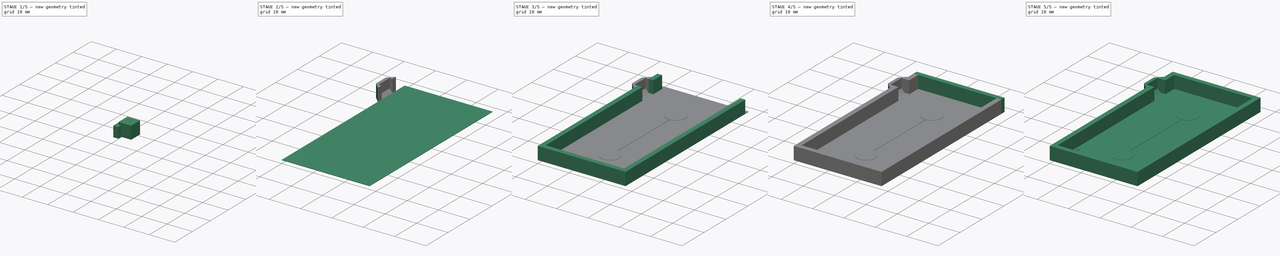
[diagram: build sequence overview — one tinted view per stage of 5, left to right]
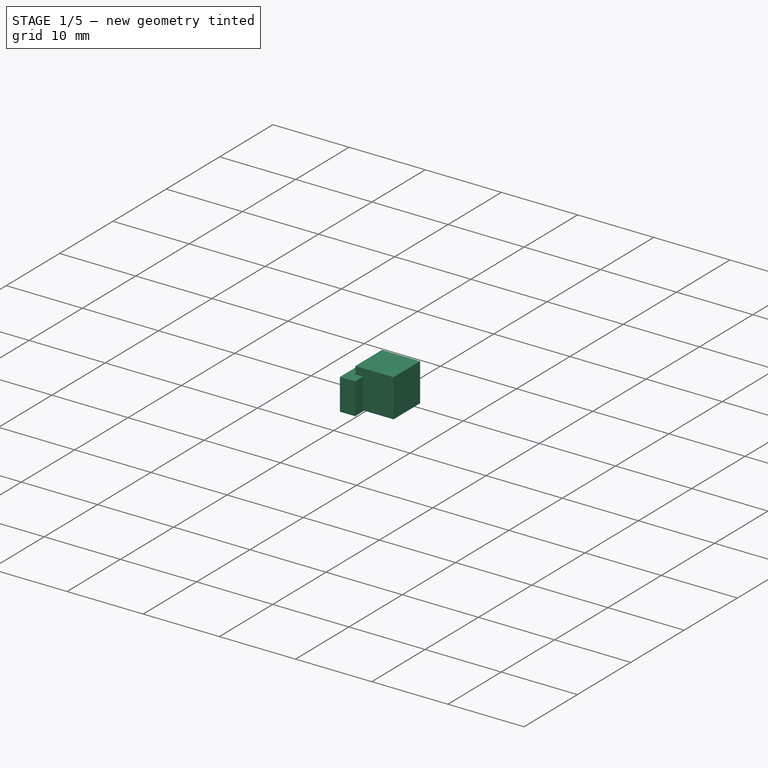
[diagram: stage 1 of 5 — iso view after this stage's code; geometry added in this stage tinted green]
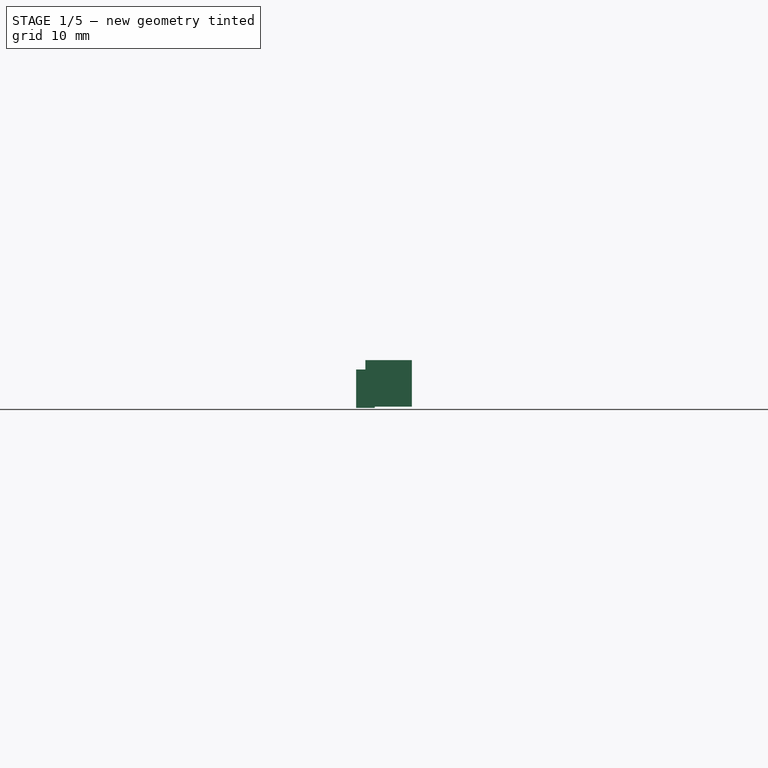
[diagram: stage 1 of 5 — front view after this stage's code; geometry added in this stage tinted green]
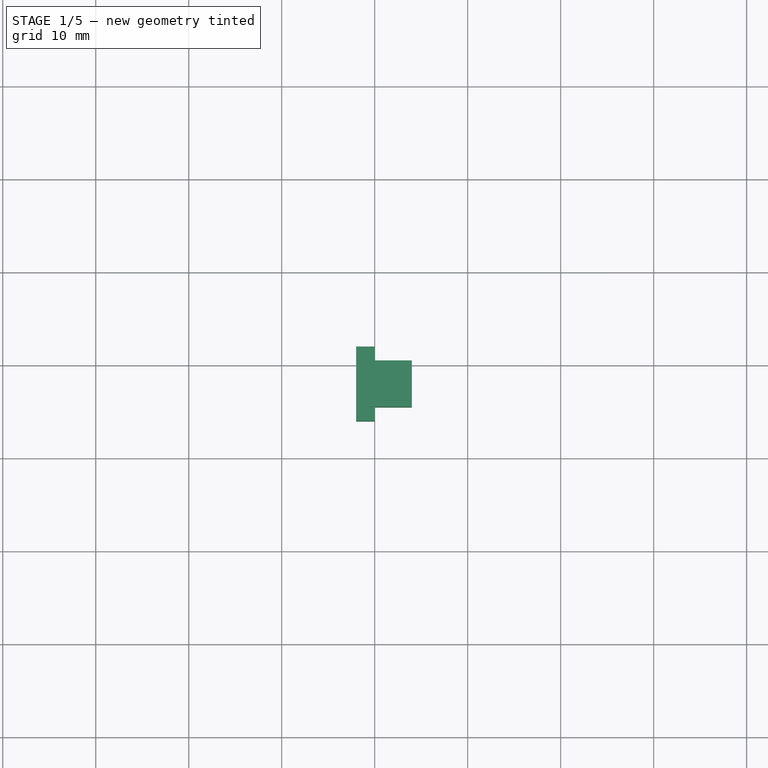
[diagram: stage 1 of 5 — top view after this stage's code; geometry added in this stage tinted green]
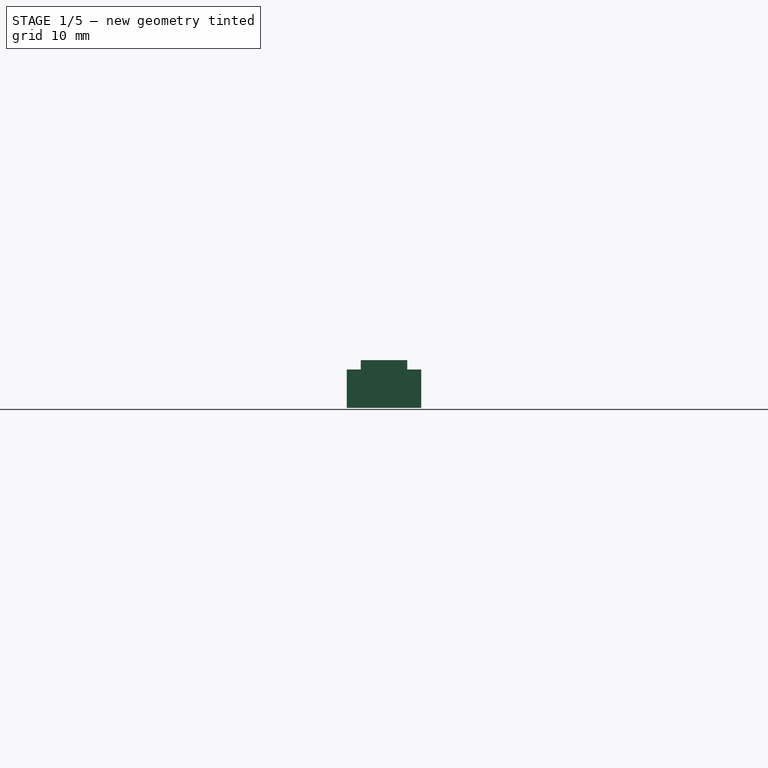
[diagram: stage 1 of 5 — right view after this stage's code; geometry added in this stage tinted green]
FCSTD DOCUMENT  (FreeCAD 0.16R6706 (Git))
Label: Maskless_Large_WithWalls_Template_v1
License: All rights reserved
LicenseURL: http://en.wikipedia.org/wiki/All_rights_reserved
objects: PartDesign::Pad×6, Sketcher::SketchObject×5, Part::MultiFuse×4, Part::Box×3, Part::Chamfer×2, Part::Part2DObjectPython×1, Part::Cut×1
note: 28 computed .brp shape members not serialized (recipe doc carries the construction recipe); baked Part::Feature solids carry a one-line shape summary decoded from their .brp

FEATURE [Part::Box] Box002  label="Cube002"
  Height = 4.125
  Length = 2
  Placement = pos=(-2,44,0) rot=(0,0,1;0rad)
  Width = 8
FEATURE [Part::Box] Box004  label="Cube004"
  Height = 5
  Length = 5
  Placement = pos=(-1,45.5,0.125) rot=(0,0,1;0rad)
  Width = 5
FEATURE [Part::Chamfer] Chamfer
  Base = -> Box004
  Edges = 1 edges r=1: [Edge4]
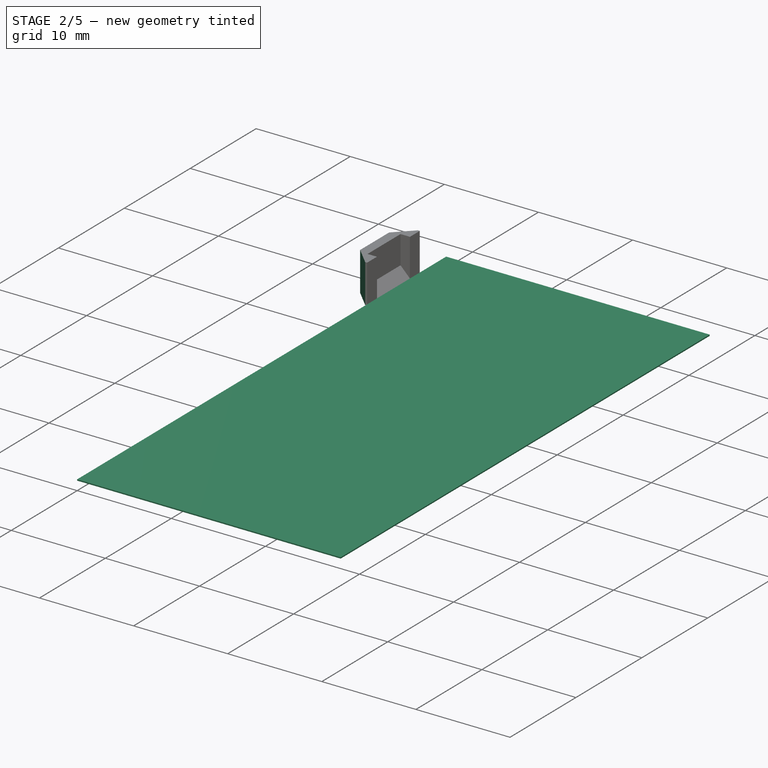
[diagram: stage 2 of 5 — iso view after this stage's code; geometry added in this stage tinted green]
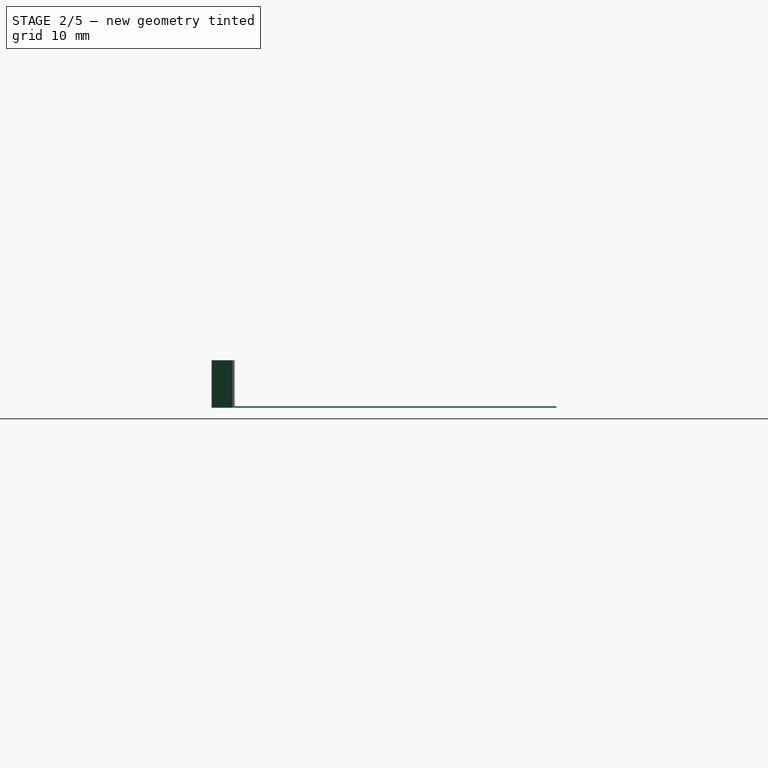
[diagram: stage 2 of 5 — front view after this stage's code; geometry added in this stage tinted green]
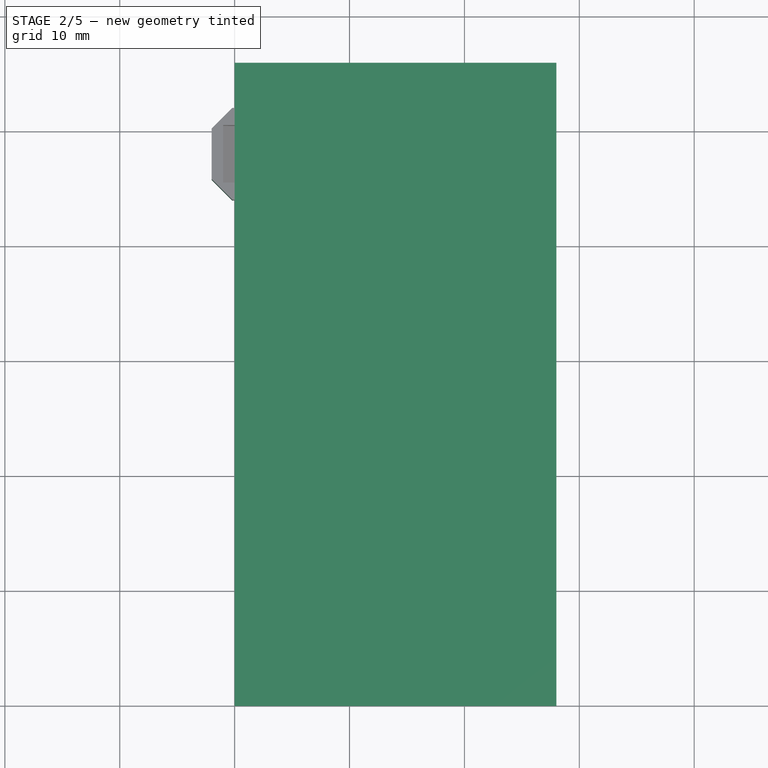
[diagram: stage 2 of 5 — top view after this stage's code; geometry added in this stage tinted green]
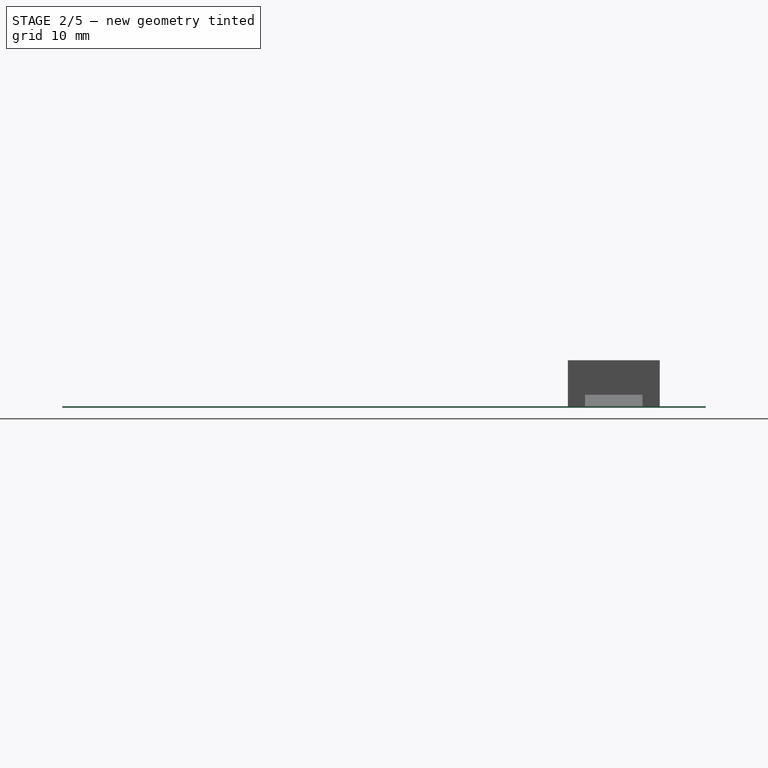
[diagram: stage 2 of 5 — right view after this stage's code; geometry added in this stage tinted green]
FEATURE [Part::Box] Box  label="Base"
  Height = 0.125
  Length = 28
  Width = 56
FEATURE [Part::Chamfer] Chamfer001
  Base = -> Box002
  Edges = 2 edges r=1.8: [Edge1,Edge3]
FEATURE [Part::Cut] Cut  label="Replica Removal Edge"
  Base = -> Chamfer001
  Tool = -> Chamfer
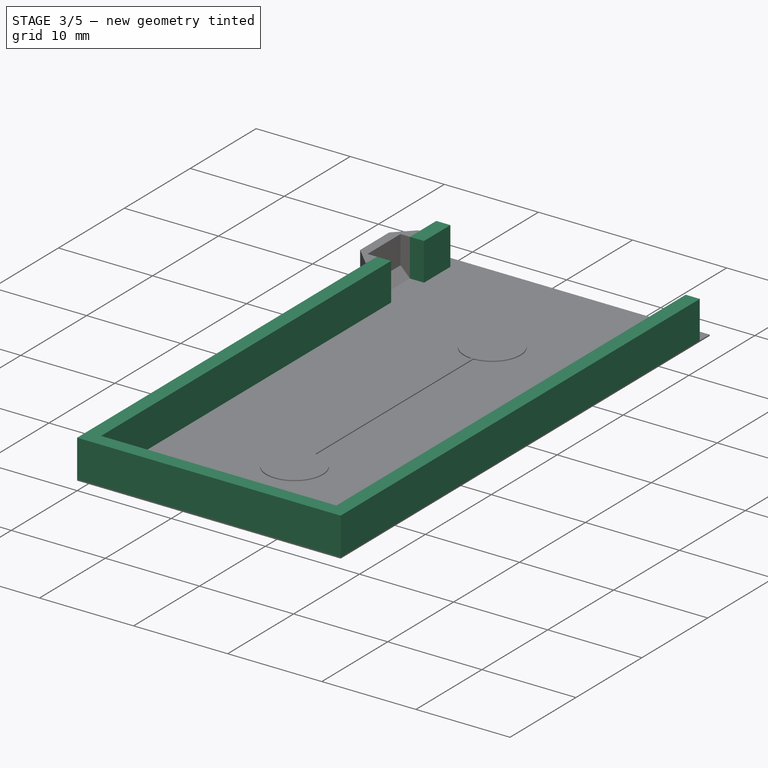
[diagram: stage 3 of 5 — iso view after this stage's code; geometry added in this stage tinted green]
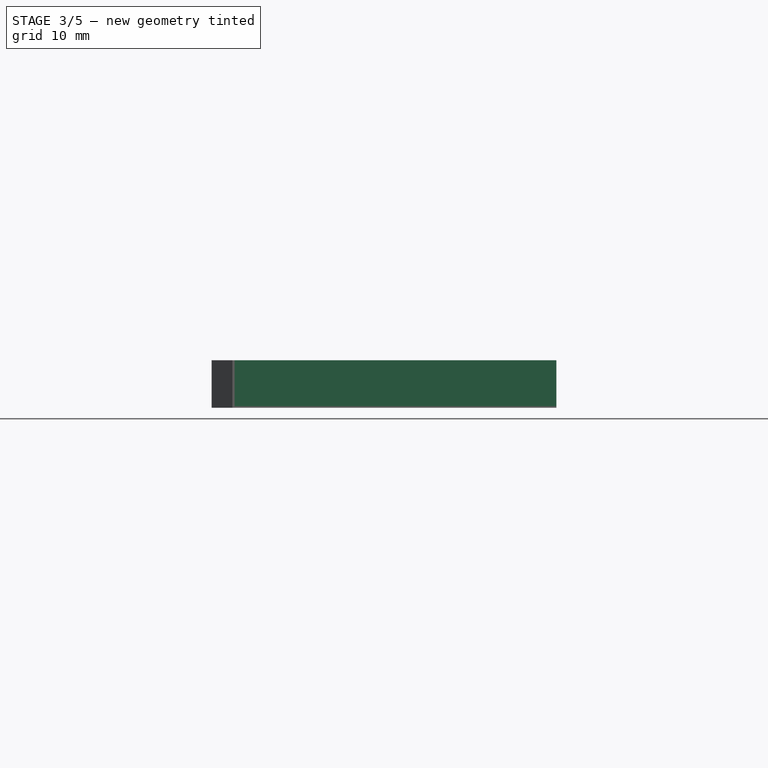
[diagram: stage 3 of 5 — front view after this stage's code; geometry added in this stage tinted green]
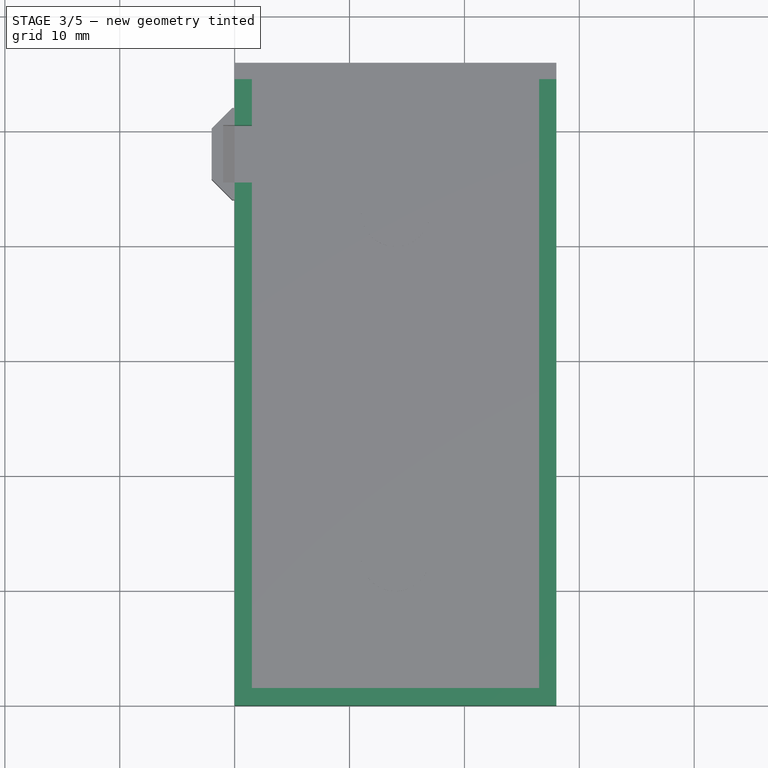
[diagram: stage 3 of 5 — top view after this stage's code; geometry added in this stage tinted green]
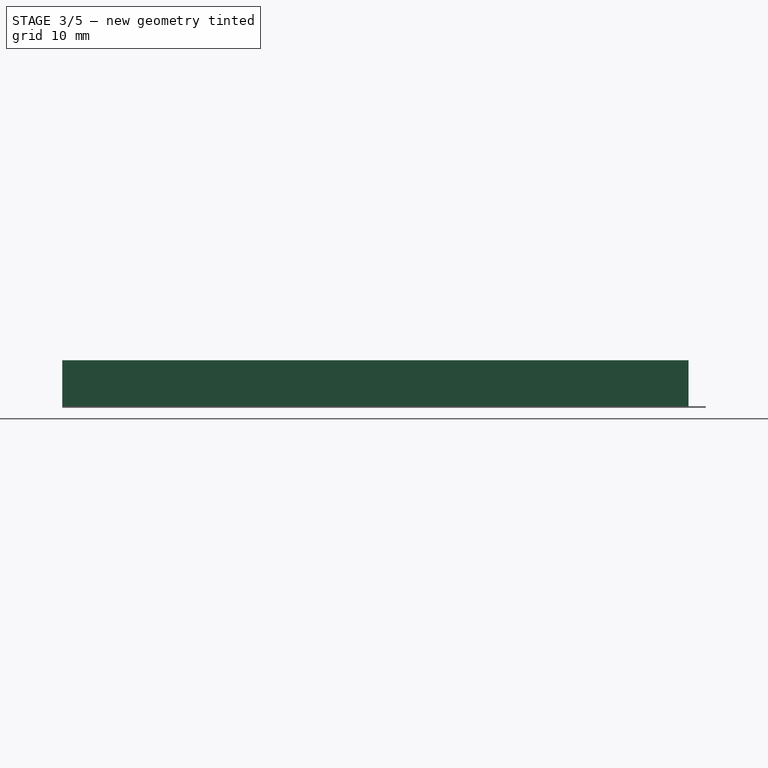
[diagram: stage 3 of 5 — right view after this stage's code; geometry added in this stage tinted green]
FEATURE [Sketcher::SketchObject] Sketch  label="Sketch - customize in Part Design"
  Placement = pos=(0,0,0.125) rot=(0,0,1;0rad)
  Support = -> Box [Face6]
  sketch-geometry (4):
    g0: ArcOfCircle CenterX=14 CenterY=43 CenterZ=0 NormalX=0 NormalY=0 NormalZ=1 Radius=3 StartAngle=4.74573 EndAngle=10.9622
    g1: ArcOfCircle CenterX=14 CenterY=13 CenterZ=0 NormalX=0 NormalY=0 NormalZ=1 Radius=3 StartAngle=1.60414 EndAngle=7.82064
    g2: LineSegment StartX=13.9 StartY=40.0017 StartZ=0 EndX=13.9 EndY=15.9983 EndZ=0
    g3: LineSegment StartX=14.1 StartY=40.0017 StartZ=0 EndX=14.1 EndY=15.9983 EndZ=0
  constraints (14):
    c: Coincident(g2,g0)
    c: Coincident(g2,g1)
    c: Vertical(g2)
    c: Coincident(g3,g0)
    c: Coincident(g3,g1)
    c: Vertical(g3)
    c: Radius(g1) = 3
    c: Equal(g1,g0)
    c: DistanceY(g1,g1) = 0
    c: DistanceX(g1,g1) = 0.2
    c: DistanceY(g0,g0) = 0
    c: DistanceY(g1,g0) = 30
    c: DistanceX(g1) = 14
    c: DistanceY(g1) = 13
FEATURE [PartDesign::Pad] Pad  label="Padded design - adjust "length""
  Length = 0.1
  Length2 = 100
  Sketch = -> Sketch
  Type = 0
FEATURE [PartDesign::Pad] Pad004
  Length = 4
  Length2 = 100
  Sketch = -> Sketch004
  Type = 0
FEATURE [PartDesign::Pad] Pad005
  Length = 4
  Length2 = 100
  Sketch = -> Sketch005
  Type = 0
FEATURE [PartDesign::Pad] Pad006
  Length = 4
  Length2 = 100
  Sketch = -> Sketch006
  Type = 0
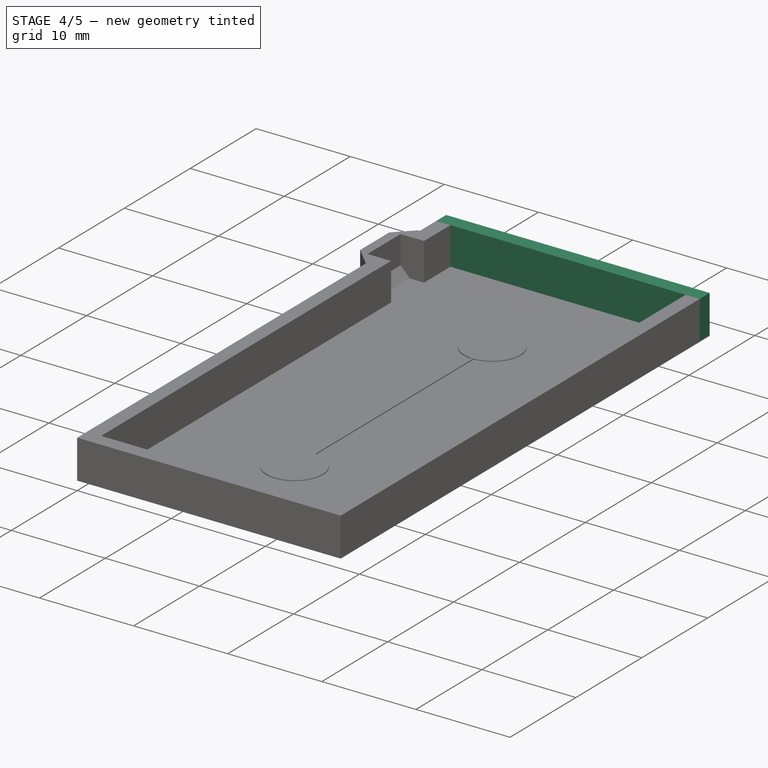
[diagram: stage 4 of 5 — iso view after this stage's code; geometry added in this stage tinted green]
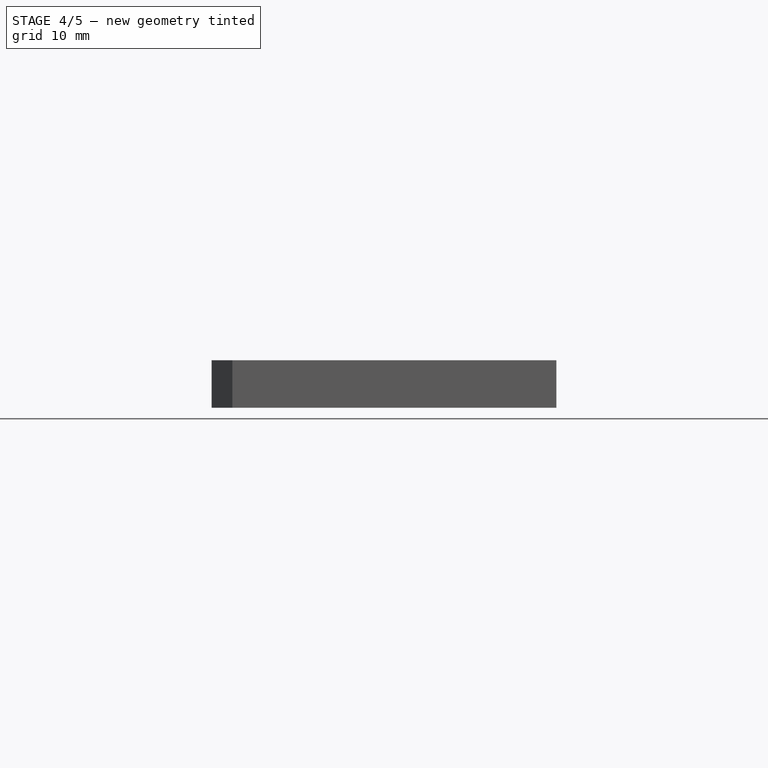
[diagram: stage 4 of 5 — front view after this stage's code; geometry added in this stage tinted green]
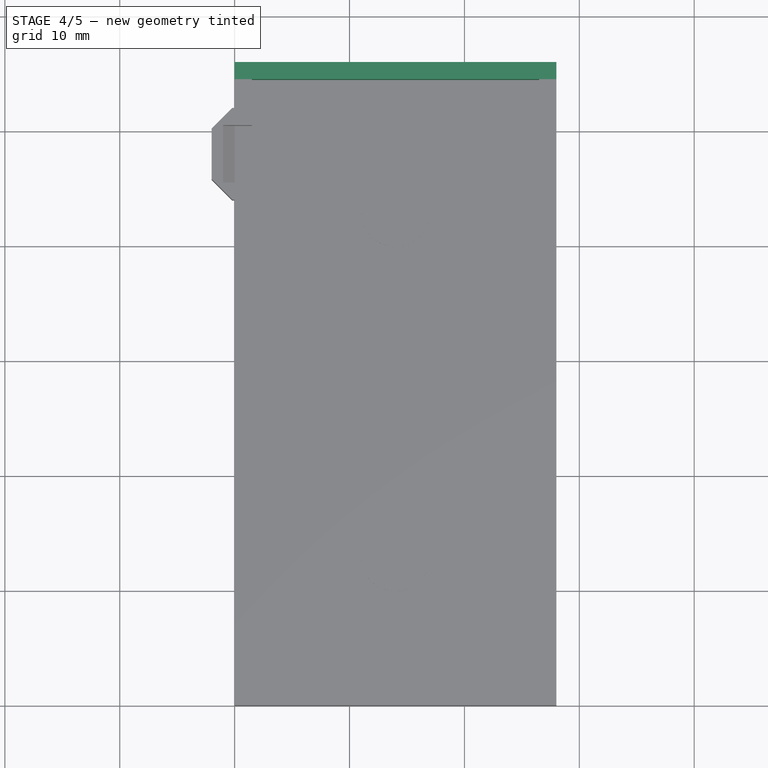
[diagram: stage 4 of 5 — top view after this stage's code; geometry added in this stage tinted green]
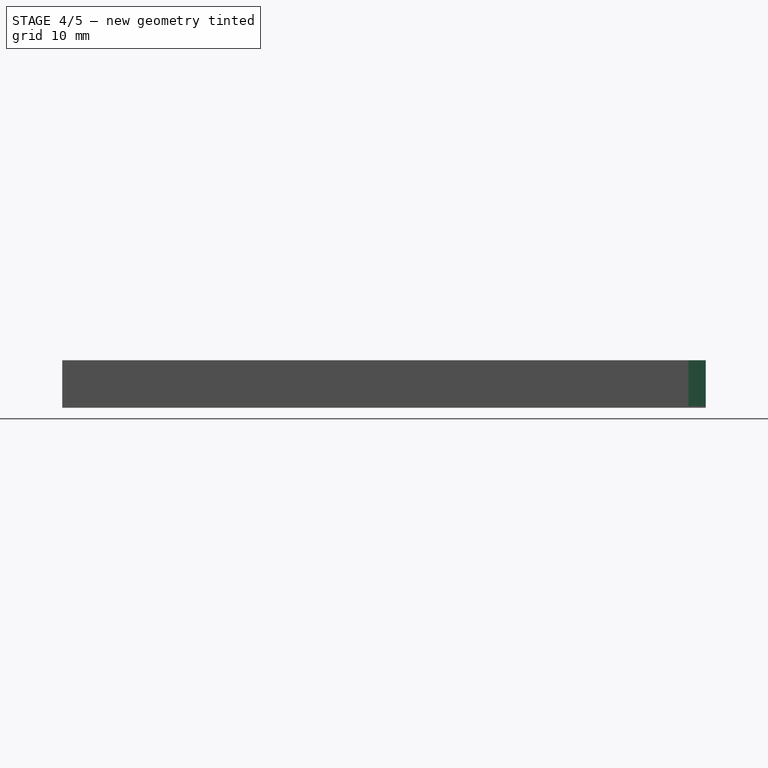
[diagram: stage 4 of 5 — right view after this stage's code; geometry added in this stage tinted green]
FEATURE [Sketcher::SketchObject] Sketch003
  Placement = pos=(0,0,0.125) rot=(0,0,1;0rad)
  Support = -> Pad [Face3]
  sketch-geometry (4):
    g0: LineSegment StartX=0 StartY=56 StartZ=0 EndX=28 EndY=56 EndZ=0
    g1: LineSegment StartX=28 StartY=56 StartZ=0 EndX=28 EndY=54.5 EndZ=0
    g2: LineSegment StartX=28 StartY=54.5 StartZ=0 EndX=0 EndY=54.5 EndZ=0
    g3: LineSegment StartX=0 StartY=54.5 StartZ=0 EndX=0 EndY=56 EndZ=0
  constraints (12):
    c: Coincident(g0,g1)
    c: Coincident(g1,g2)
    c: Coincident(g2,g3)
    c: Coincident(g3,g0)
    c: Horizontal(g0)
    c: Horizontal(g2)
    c: Vertical(g1)
    c: Vertical(g3)
    c: PointOnObject(g0,g-2)
    c: DistanceY(g0) = 56
    c: Distance(g3) = 1.5
    c: Distance(g0) = 28
FEATURE [Sketcher::SketchObject] Sketch004
  Placement = pos=(0,0,0.125) rot=(0,0,1;0rad)
  Support = -> Pad [Face3]
  sketch-geometry (8):
    g0: LineSegment StartX=0 StartY=0 StartZ=0 EndX=1.5 EndY=0 EndZ=0
    g1: LineSegment StartX=1.5 StartY=0 StartZ=0 EndX=1.5 EndY=45.5 EndZ=0
    g2: LineSegment StartX=1.5 StartY=45.5 StartZ=0 EndX=0 EndY=45.5 EndZ=0
    g3: LineSegment StartX=0 StartY=45.5 StartZ=0 EndX=0 EndY=0 EndZ=0
    g4: LineSegment StartX=1.5 StartY=50.5 StartZ=0 EndX=0 EndY=50.5 EndZ=0
    g5: LineSegment StartX=0 StartY=50.5 StartZ=0 EndX=0 EndY=54.5 EndZ=0
    g6: LineSegment StartX=0 StartY=54.5 StartZ=0 EndX=1.5 EndY=54.5 EndZ=0
    g7: LineSegment StartX=1.5 StartY=54.5 StartZ=0 EndX=1.5 EndY=50.5 EndZ=0
  constraints (23):
    c: Coincident(g0,g1)
    c: Coincident(g1,g2)
    c: Coincident(g2,g3)
    c: Coincident(g3,g0)
    c: Horizontal(g0)
    c: Horizontal(g2)
    c: Vertical(g1)
    c: Vertical(g3)
    c: Coincident(g0,g-1)
    c: Coincident(g4,g5)
    c: Coincident(g5,g6)
    c: Coincident(g6,g7)
    c: Coincident(g7,g4)
    c: Horizontal(g4)
    c: Horizontal(g6)
    c: Vertical(g5)
    c: Vertical(g7)
    c: PointOnObject(g5,g-2)
    c: DistanceY(g2) = 45.5
    c: DistanceY(g5) = 54.5
    c: Equal(g4,g2)
    c: DistanceX(g-1,g0) = 1.5
    c: DistanceY(g4,g6) = 4
FEATURE [Sketcher::SketchObject] Sketch005
  Placement = pos=(0,0,0.125) rot=(0,0,1;0rad)
  Support = -> Pad [Face3]
  sketch-geometry (4):
    g0: LineSegment StartX=0 StartY=0 StartZ=0 EndX=28 EndY=0 EndZ=0
    g1: LineSegment StartX=28 StartY=0 StartZ=0 EndX=28 EndY=1.5 EndZ=0
    g2: LineSegment StartX=28 StartY=1.5 StartZ=0 EndX=0 EndY=1.5 EndZ=0
    g3: LineSegment StartX=0 StartY=1.5 StartZ=0 EndX=0 EndY=0 EndZ=0
  constraints (11):
    c: Coincident(g0,g1)
    c: Coincident(g1,g2)
    c: Coincident(g2,g3)
    c: Coincident(g3,g0)
    c: Horizontal(g0)
    c: Horizontal(g2)
    c: Vertical(g1)
    c: Vertical(g3)
    c: Coincident(g0,g-1)
    c: Distance(g3) = 1.5
    c: DistanceX(g0) = 28
FEATURE [Sketcher::SketchObject] Sketch006
  Placement = pos=(0,0,0.125) rot=(0,0,1;0rad)
  Support = -> Pad [Face3]
  sketch-geometry (4):
    g0: LineSegment StartX=28 StartY=1.5 StartZ=0 EndX=26.5 EndY=1.5 EndZ=0
    g1: LineSegment StartX=26.5 StartY=1.5 StartZ=0 EndX=26.5 EndY=54.5 EndZ=0
    g2: LineSegment StartX=26.5 StartY=54.5 StartZ=0 EndX=28 EndY=54.5 EndZ=0
    g3: LineSegment StartX=28 StartY=54.5 StartZ=0 EndX=28 EndY=1.5 EndZ=0
  constraints (12):
    c: Coincident(g0,g1)
    c: Coincident(g1,g2)
    c: Coincident(g2,g3)
    c: Coincident(g3,g0)
    c: Horizontal(g0)
    c: Horizontal(g2)
    c: Vertical(g1)
    c: Vertical(g3)
    c: DistanceY(g0) = 1.5
    c: Distance(g0) = 1.5
    c: DistanceX(g0) = 28
    c: DistanceY(g2) = 54.5
FEATURE [PartDesign::Pad] Pad003
  Length = 4
  Length2 = 100
  Sketch = -> Sketch003
  Type = 0
FEATURE [Part::MultiFuse] Fusion001  label="Walls"
  Shapes = -> [Pad003,Pad004,Pad005,Pad006]
FEATURE [Part::MultiFuse] Fusion  label="Walls001"
  Shapes = -> [Cut,Fusion001]
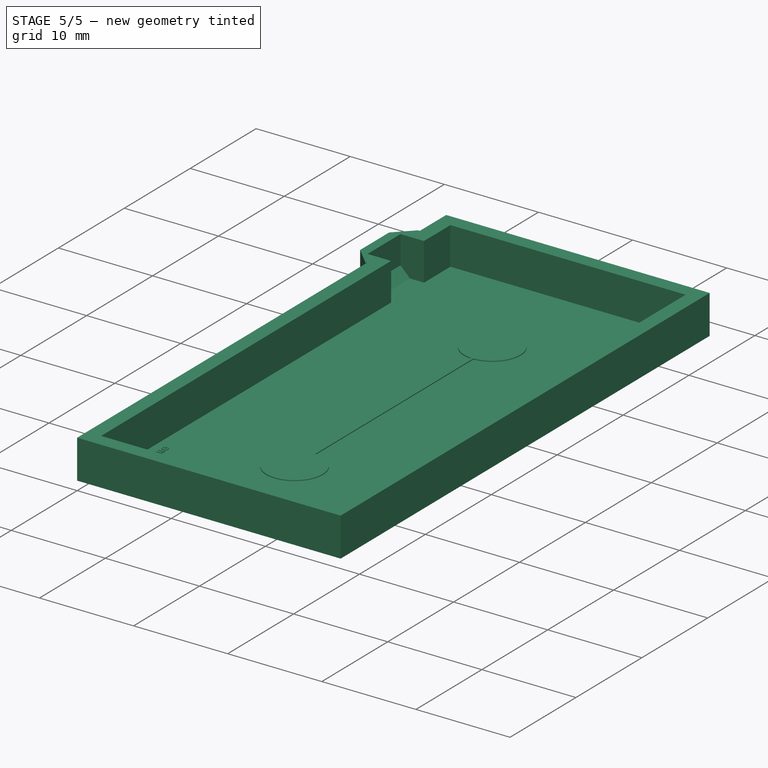
[diagram: stage 5 of 5 — iso view after this stage's code; geometry added in this stage tinted green]
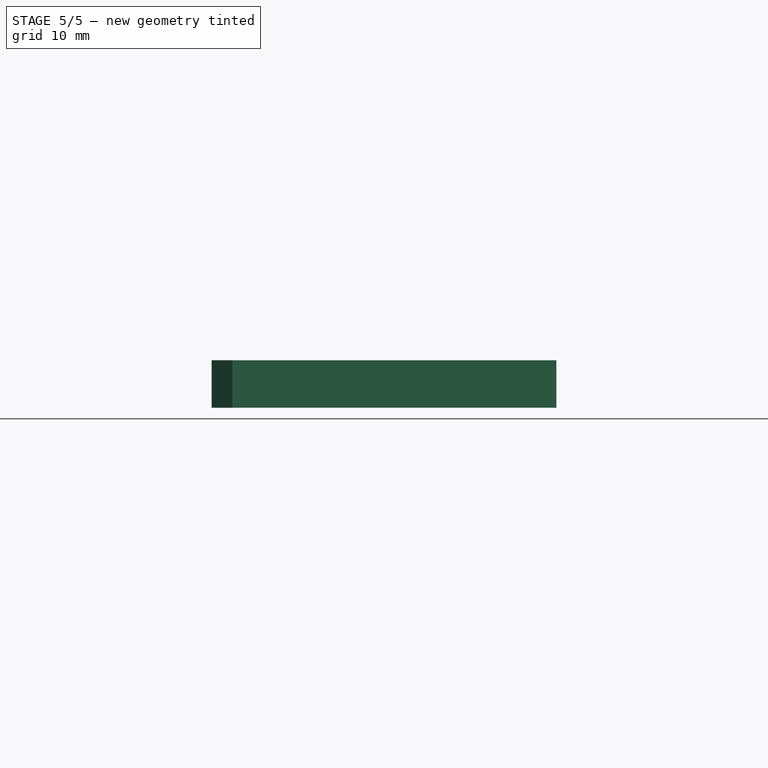
[diagram: stage 5 of 5 — front view after this stage's code; geometry added in this stage tinted green]
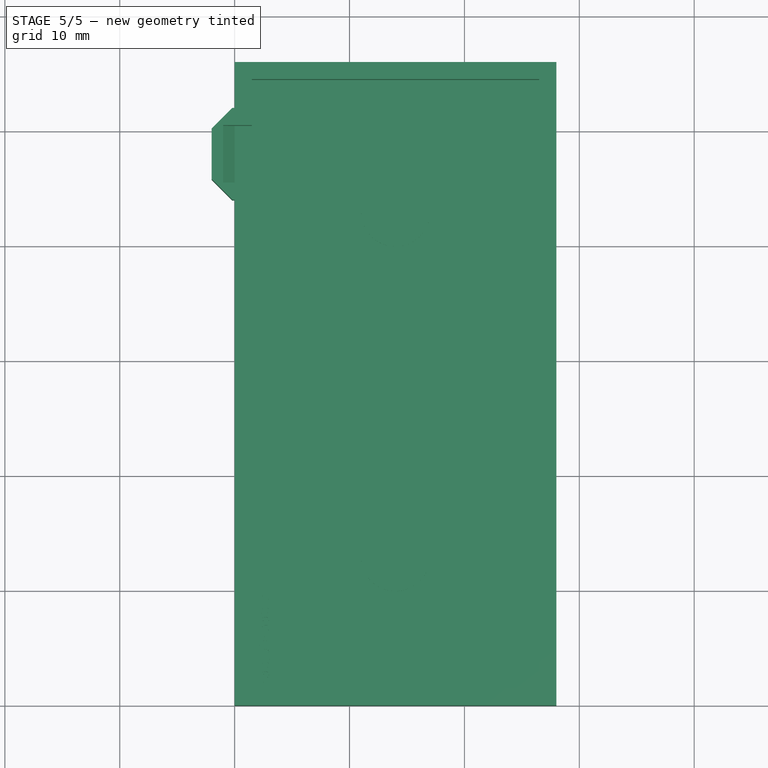
[diagram: stage 5 of 5 — top view after this stage's code; geometry added in this stage tinted green]
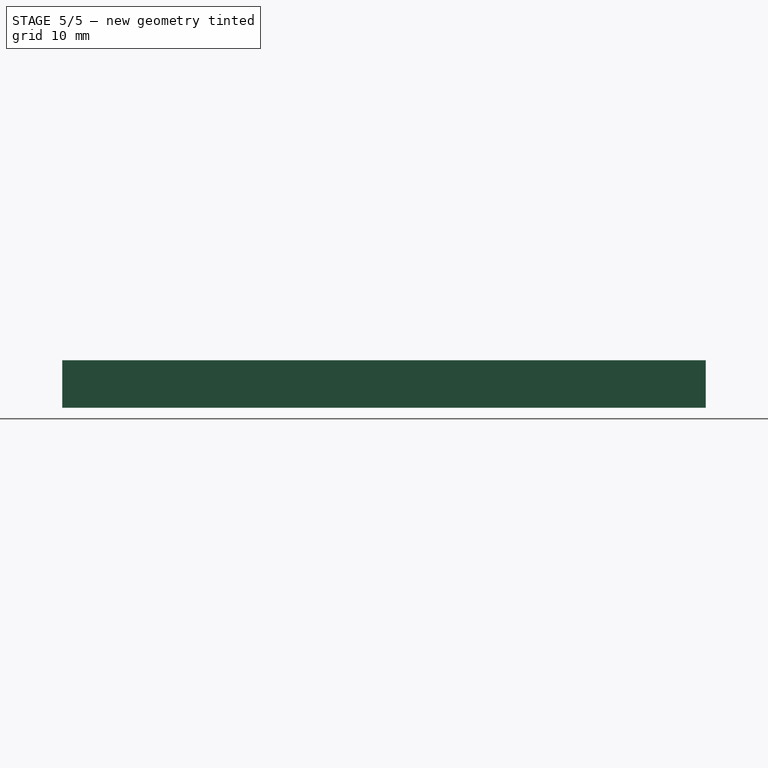
[diagram: stage 5 of 5 — right view after this stage's code; geometry added in this stage tinted green]
FEATURE [Part::Part2DObjectPython] ShapeString004  label="Optional Name - edit "String""  # Draft 2D object (typed FeaturePython)
  FontFile = <userpath>/ownCloud/3D Print Files/Standard_Prints/Eiffel_Tower/SLA Optimized (Form 1+)/CAMBRIAB.TTF
  Placement = pos=(3,2,0.125) rot=(0,0,1;1.5708rad)
  Size = 1
  String = sample name
  Support = -> Fusion001
  Tracking = 0
FEATURE [PartDesign::Pad] Pad012  label="Padded optional name"
  Length = 0.1
  Length2 = 100
  Sketch = -> ShapeString004
  Type = 0
FEATURE [Part::MultiFuse] Fusion002  label="Base and Walls - do not edit"
  Shapes = -> [Fusion,Box]
FEATURE [Part::MultiFuse] Fusion003  label="Fused_Design_for_Export"
  Shapes = -> [Pad,Pad012,Fusion002]
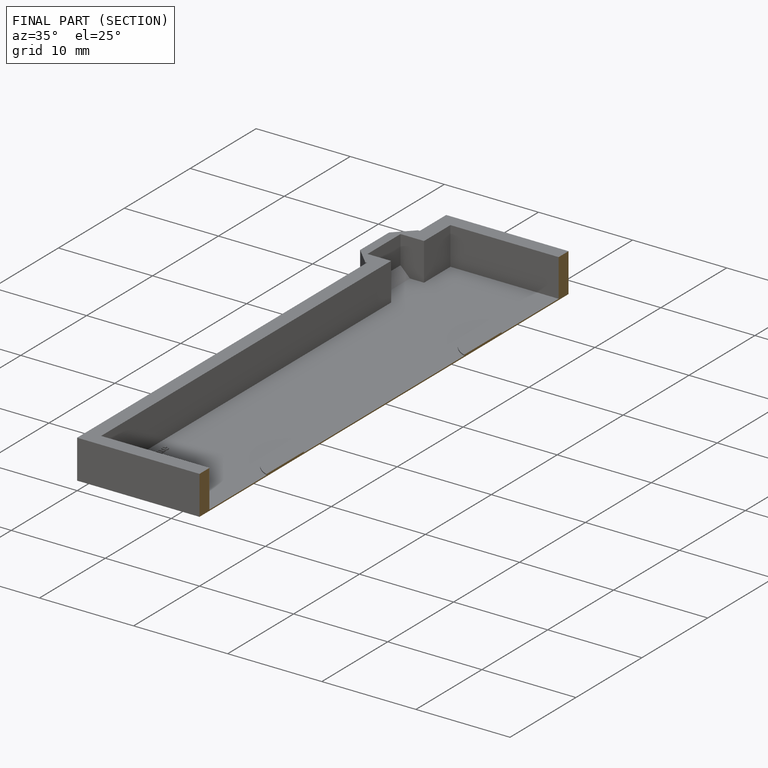
[diagram: finished part — half-section view (interior)]
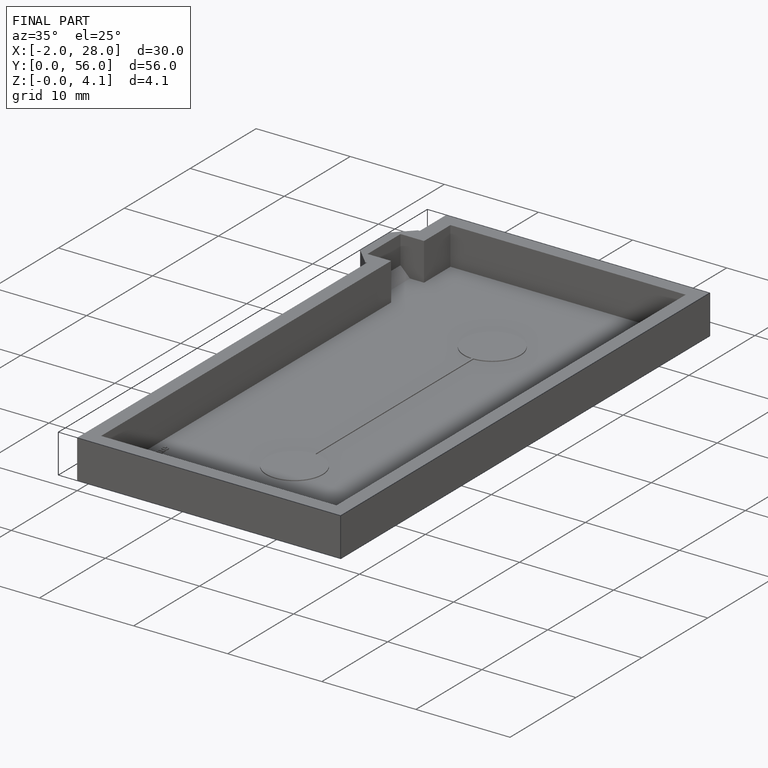
[diagram: finished part — iso view with bounding-box wireframe]
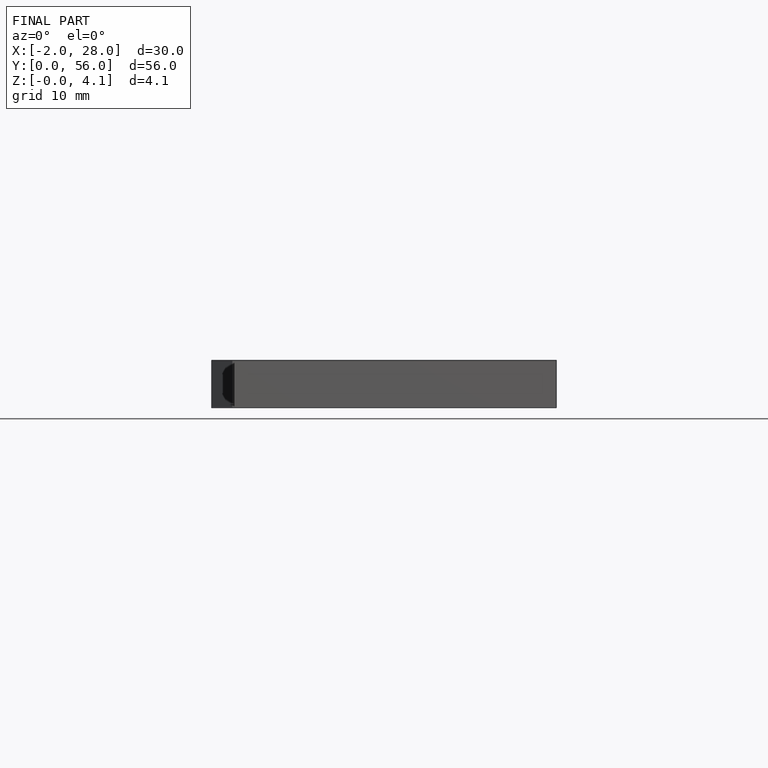
[diagram: finished part — front view with bounding-box wireframe]
